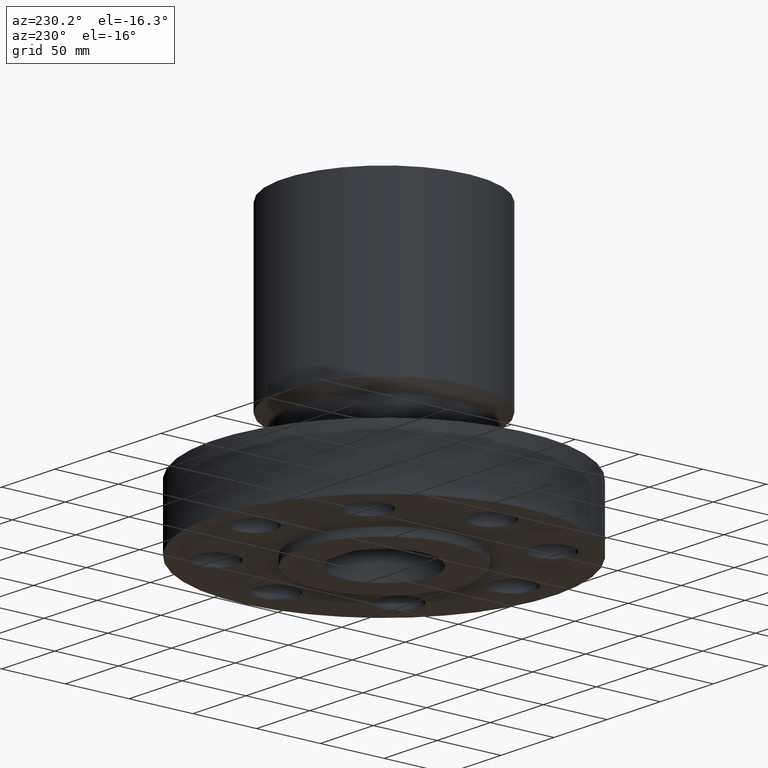
[diagram: clean part render]
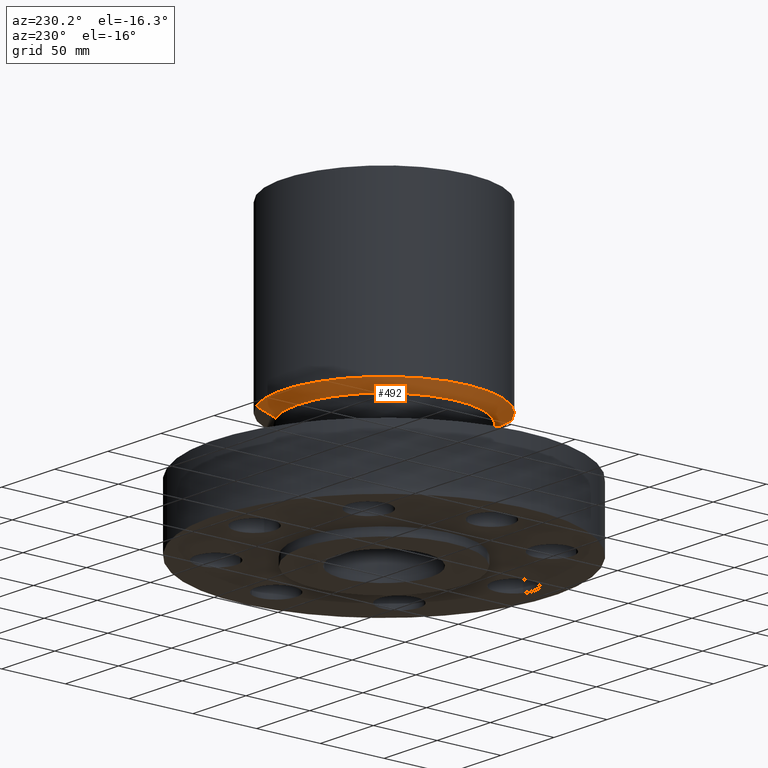
[diagram: same view with one face highlighted and labeled with its STEP entity id]
A machine part, auxiliary view. The second image highlights one B-rep face of the part: STEP entity #492.
In plain terms, the highlighted conical surface has half-angle 60 deg.
Its self-contained STEP definition (entity closure, byte-faithful):
#440=AXIS2_PLACEMENT_3D('Circle Axis2P3D',#438,#439,$) ;
#453=AXIS2_PLACEMENT_3D('Cone Axis2P3D',#450,#451,#452) ;
#483=AXIS2_PLACEMENT_3D('Circle Axis2P3D',#481,#482,$) ;
#416=CARTESIAN_POINT('Vertex',(1.25849203884,2.30365422497,3.26000000001)) ;
#423=CARTESIAN_POINT('Vertex',(-1.25849203884,-2.30365422497,3.26000000001)) ;
#438=CARTESIAN_POINT('Axis2P3D Location',(0.,0.,3.26000000001)) ;
#450=CARTESIAN_POINT('Axis2P3D Location',(0.,0.,3.26000000001)) ;
#455=CARTESIAN_POINT('Line Origine',(1.37115704041,2.50988612702,3.39567731327)) ;
#459=CARTESIAN_POINT('Vertex',(1.48382204199,2.71611802906,3.53135462653)) ;
#466=CARTESIAN_POINT('Vertex',(-1.48382204199,-2.71611802906,3.53135462653)) ;
#469=CARTESIAN_POINT('Line Origine',(-1.37115704041,-2.50988612702,3.39567731327)) ;
#481=CARTESIAN_POINT('Axis2P3D Location',(0.,0.,3.53135462653)) ;
#439=DIRECTION('Axis2P3D Direction',(0.,0.,-0.0393700787402)) ;
#451=DIRECTION('Axis2P3D Direction',(-0.,-0.,0.0393700787402)) ;
#452=DIRECTION('Axis2P3D XDirection',(0.0188750212049,0.0345504945626,0.)) ;
#456=DIRECTION('Vector Direction',(0.0163462478604,0.0299216060045,0.0196850393701)) ;
#470=DIRECTION('Vector Direction',(-0.0163462478604,-0.0299216060045,0.0196850393701)) ;
#482=DIRECTION('Axis2P3D Direction',(-0.,0.,0.0393700787402)) ;
#457=VECTOR('Line Direction',#456,0.0393700787402) ;
#471=VECTOR('Line Direction',#470,0.0393700787402) ;
#487=ORIENTED_EDGE('',*,*,#442,.F.) ;
#488=ORIENTED_EDGE('',*,*,#473,.T.) ;
#489=ORIENTED_EDGE('',*,*,#485,.T.) ;
#490=ORIENTED_EDGE('',*,*,#461,.F.) ;
#492=ADVANCED_FACE('PartBody',(#491),#454,.T.) ;
#441=CIRCLE('generated circle',#440,2.62500000001) ;
#484=CIRCLE('generated circle',#483,3.09500000001) ;
#454=CONICAL_SURFACE('Cone',#453,2.62500000001,1.0471975512) ;
#442=EDGE_CURVE('',#424,#417,#441,.T.) ;
#461=EDGE_CURVE('',#417,#460,#458,.T.) ;
#473=EDGE_CURVE('',#424,#467,#472,.T.) ;
#485=EDGE_CURVE('',#467,#460,#484,.F.) ;
#486=EDGE_LOOP('',(#487,#488,#489,#490)) ;
#491=FACE_OUTER_BOUND('',#486,.T.) ;
#458=LINE('Line',#455,#457) ;
#472=LINE('Line',#469,#471) ;
#417=VERTEX_POINT('',#416) ;
#424=VERTEX_POINT('',#423) ;
#460=VERTEX_POINT('',#459) ;
#467=VERTEX_POINT('',#466) ;